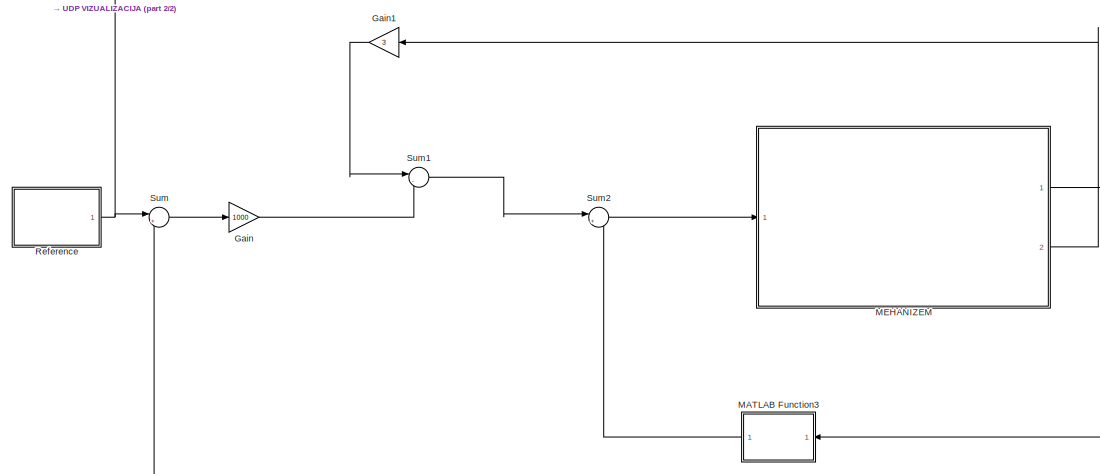
[diagram: root canvas - part 1/2, middle left region]
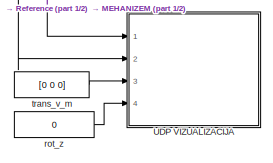
[diagram: root canvas - part 2/2, middle right region]
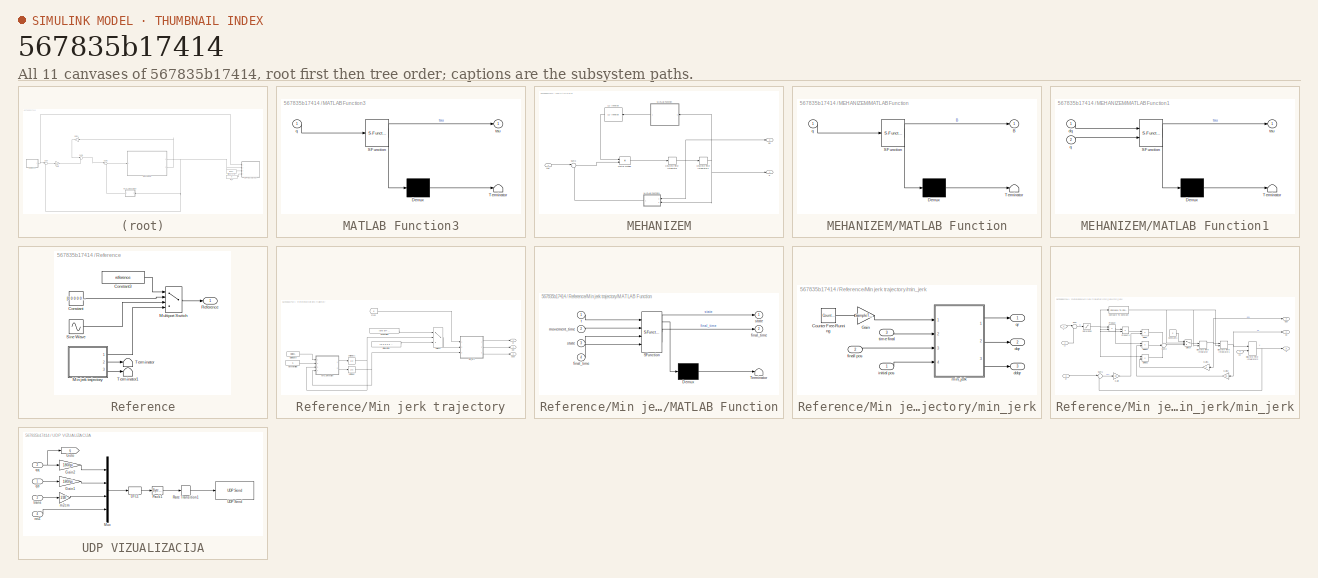
[diagram: thumbnail index - all 11 canvases of the model, root first then tree order]
MODEL slx_567835b17414
KIND model
CONFIG AbsTol = auto
CONFIG EnableMultiTasking = on
CONFIG FixedStep = SampleTime
CONFIG MaxStep = auto
CONFIG MinStep = auto
CONFIG PreLoadFcn = SampleTime = 1/500;\n\nq0 = [0 0 0 0 0 0];\n\nsystem('MotomanVodenje.exe &')
CONFIG RelTol = 1e-3
CONFIG SampleTimeConstraint = Unconstrained
CONFIG Solver = FixedStepDiscrete
CONFIG SolverName = FixedStepDiscrete
CONFIG StartTime = 0.0
CONFIG StopTime = inf
BLOCK [Gain] Gain
  Gain = 1000
  OutDataTypeStr = Inherit: Inherit via internal rule
  ParamDataTypeStr = Inherit: Inherit via internal rule
  SaturateOnIntegerOverflow = off
BLOCK [Gain] Gain1
  Gain = 3
  OutDataTypeStr = Inherit: Inherit via internal rule
  ParamDataTypeStr = Inherit: Inherit via internal rule
  SaturateOnIntegerOverflow = off
BLOCK [SubSystem] MATLAB Function3
  ErrorFcn = Stateflow.Translate.translate
  PermitHierarchicalResolution = ExplicitOnly
  Ports = [1, 1]
  RequestExecContextInheritance = off
  SFBlockType = MATLAB Function
  TreatAsAtomicUnit = on
BLOCK [Demux] MATLAB Function3/ Demux 
  Outputs = 1
  Ports = [1, 1]
BLOCK [S-Function] MATLAB Function3/ SFunction 
  EnableBusSupport = on
  FunctionName = sf_sfun
  PortCounts = [1 2]
  Ports = [1, 2]
  SFcnIsStateOwnerBlock = off
  SFunctionDeploymentMode = off
  Tag = Stateflow S-Function 4
BLOCK [Terminator] MATLAB Function3/ Terminator 
BLOCK [Inport] MATLAB Function3/q
  IconDisplay = Port number
BLOCK [Outport] MATLAB Function3/tau
  IconDisplay = Port number
BLOCK [SubSystem] MEHANIZEM
  Ports = [1, 2]
  RequestExecContextInheritance = off
BLOCK [Reference] MEHANIZEM/ LU Inverse  REF=dspinverses/ LU Inverse
  Ports = [1, 1]
  SourceBlock = dspinverses/ LU Inverse
  SourceProductBaseCode = DS
  SourceProductName = DSP System Toolbox
  SourceType = LU Inverse
BLOCK [DiscreteIntegrator] MEHANIZEM/Discrete-Time Integrator
  ICPrevOutput = DiscIntNeverNeededParam
  ICPrevScaledInput = DiscIntNeverNeededParam
  InitialCondition = [0;0;0;0;0;0]
  InitialConditionSetting = Auto
  Ports = [1, 1]
  SampleTime = 1/500
BLOCK [DiscreteIntegrator] MEHANIZEM/Discrete-Time Integrator1
  ICPrevOutput = DiscIntNeverNeededParam
  ICPrevScaledInput = DiscIntNeverNeededParam
  InitialCondition = [0;0;0;0;0;0]
  InitialConditionSetting = Auto
  Ports = [1, 1]
  SampleTime = 1/500
BLOCK [SubSystem] MEHANIZEM/MATLAB Function
  ErrorFcn = Stateflow.Translate.translate
  PermitHierarchicalResolution = ExplicitOnly
  Ports = [1, 1]
  RequestExecContextInheritance = off
  SFBlockType = MATLAB Function
  TreatAsAtomicUnit = on
BLOCK [Demux] MEHANIZEM/MATLAB Function/ Demux 
  Outputs = 1
  Ports = [1, 1]
BLOCK [S-Function] MEHANIZEM/MATLAB Function/ SFunction 
  EnableBusSupport = on
  FunctionName = sf_sfun
  PortCounts = [1 2]
  Ports = [1, 2]
  SFcnIsStateOwnerBlock = off
  SFunctionDeploymentMode = off
  Tag = Stateflow S-Function 3
BLOCK [Terminator] MEHANIZEM/MATLAB Function/ Terminator 
BLOCK [Outport] MEHANIZEM/MATLAB Function/B
  IconDisplay = Port number
BLOCK [Inport] MEHANIZEM/MATLAB Function/q
  IconDisplay = Port number
BLOCK [SubSystem] MEHANIZEM/MATLAB Function1
  ErrorFcn = Stateflow.Translate.translate
  PermitHierarchicalResolution = ExplicitOnly
  Ports = [2, 1]
  RequestExecContextInheritance = off
  SFBlockType = MATLAB Function
  TreatAsAtomicUnit = on
BLOCK [Demux] MEHANIZEM/MATLAB Function1/ Demux 
  Outputs = 1
  Ports = [1, 1]
BLOCK [S-Function] MEHANIZEM/MATLAB Function1/ SFunction 
  EnableBusSupport = on
  FunctionName = sf_sfun
  PortCounts = [2 2]
  Ports = [2, 2]
  SFcnIsStateOwnerBlock = off
  SFunctionDeploymentMode = off
  Tag = Stateflow S-Function 5
BLOCK [Terminator] MEHANIZEM/MATLAB Function1/ Terminator 
BLOCK [Inport] MEHANIZEM/MATLAB Function1/dq
  IconDisplay = Port number
BLOCK [Inport] MEHANIZEM/MATLAB Function1/q
  IconDisplay = Port number
  Port = 2
BLOCK [Outport] MEHANIZEM/MATLAB Function1/tau
  IconDisplay = Port number
BLOCK [Product] MEHANIZEM/Matrix Multiply
  InputSameDT = off
  Multiplication = Matrix(*)
  OutDataTypeStr = Inherit: Inherit via internal rule
  Ports = [2, 1]
  RndMeth = Floor
  SaturateOnIntegerOverflow = off
BLOCK [Sum] MEHANIZEM/Sum3
  IconShape = round
  InputSameDT = off
  Inputs = |+-
  OutDataTypeStr = Inherit: Inherit via internal rule
  Ports = [2, 1]
  SaturateOnIntegerOverflow = off
BLOCK [Outport] MEHANIZEM/dq
  IconDisplay = Port number
  Port = 2
BLOCK [Outport] MEHANIZEM/q
  IconDisplay = Port number
BLOCK [Inport] MEHANIZEM/tau
  IconDisplay = Port number
BLOCK [SubSystem] Reference
  Ports = [0, 1]
  RequestExecContextInheritance = off
BLOCK [Constant] Reference/Constant
  Value = [0 0 0 0 0 0]
BLOCK [Constant] Reference/Constant3
  Value = reference
BLOCK [SubSystem] Reference/Min jerk trajectory
  Ports = [0, 3]
  RequestExecContextInheritance = off
BLOCK [DigitalClock] Reference/Min jerk trajectory/Digital Clock
  SampleTime = SampleTime
BLOCK [Constant] Reference/Min jerk trajectory/Final position
  Value = [pi/6 pi/4 pi/6 pi/8 pi/2 0]
BLOCK [From] Reference/Min jerk trajectory/From
  GotoTag = q
  TagVisibility = global
BLOCK [Constant] Reference/Min jerk trajectory/Initial position
  Value = [0 0 0 0 0 0]
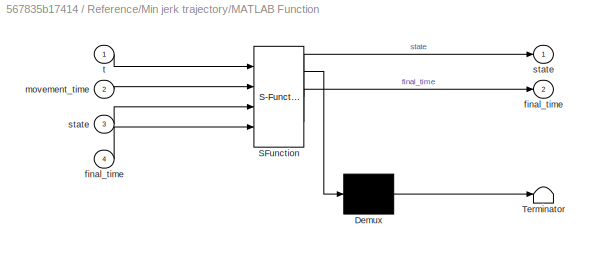
BLOCK [SubSystem] Reference/Min jerk trajectory/MATLAB Function
  ErrorFcn = Stateflow.Translate.translate
  PermitHierarchicalResolution = ExplicitOnly
  Ports = [4, 2]
  RequestExecContextInheritance = off
  SFBlockType = MATLAB Function
  TreatAsAtomicUnit = on
BLOCK [Demux] Reference/Min jerk trajectory/MATLAB Function/ Demux 
  Outputs = 1
  Ports = [1, 1]
BLOCK [S-Function] Reference/Min jerk trajectory/MATLAB Function/ SFunction 
  EnableBusSupport = on
  FunctionName = sf_sfun
  PortCounts = [4 3]
  Ports = [4, 3]
  SFcnIsStateOwnerBlock = off
  SFunctionDeploymentMode = off
  Tag = Stateflow S-Function 17
BLOCK [Terminator] Reference/Min jerk trajectory/MATLAB Function/ Terminator 
BLOCK [Outport] Reference/Min jerk trajectory/MATLAB Function/final_time
  IconDisplay = Port number
  Port = 2
BLOCK [Inport] Reference/Min jerk trajectory/MATLAB Function/final_time 
  IconDisplay = Port number
  Port = 4
BLOCK [Inport] Reference/Min jerk trajectory/MATLAB Function/movement_time
  IconDisplay = Port number
  Port = 2
BLOCK [Outport] Reference/Min jerk trajectory/MATLAB Function/state
  IconDisplay = Port number
BLOCK [Inport] Reference/Min jerk trajectory/MATLAB Function/state 
  IconDisplay = Port number
  Port = 3
BLOCK [Inport] Reference/Min jerk trajectory/MATLAB Function/t
  IconDisplay = Port number
BLOCK [Constant] Reference/Min jerk trajectory/Movement time
  Value = 5
BLOCK [Switch] Reference/Min jerk trajectory/Switch1
  Criteria = u2 > Threshold
  InputSameDT = off
  SaturateOnIntegerOverflow = off
BLOCK [UnitDelay] Reference/Min jerk trajectory/Unit Delay
  HasFrameUpgradeWarning = on
  InitialCondition = 10
  SampleTime = -1
BLOCK [UnitDelay] Reference/Min jerk trajectory/Unit Delay1
  HasFrameUpgradeWarning = on
  InitialCondition = 1
  SampleTime = -1
BLOCK [Outport] Reference/Min jerk trajectory/ddqr
  IconDisplay = Port number
  Port = 3
BLOCK [Outport] Reference/Min jerk trajectory/dqr
  IconDisplay = Port number
  Port = 2
BLOCK [SubSystem] Reference/Min jerk trajectory/min_jerk
  Ports = [3, 3]
  RequestExecContextInheritance = off
BLOCK [Reference] Reference/Min jerk trajectory/min_jerk/Counter Free-Running  REF=simulink/Sources/Counter
Free-Running
  Ports = [0, 1]
  SourceBlock = simulink/Sources/Counter\nFree-Running
  SourceProductBaseCode = SL
  SourceProductName = Simulink
  SourceType = Counter Free-Running
BLOCK [Gain] Reference/Min jerk trajectory/min_jerk/Gain
  Gain = SampleTime
  OutDataTypeStr = Inherit: Inherit via internal rule
  ParamDataTypeStr = Inherit: Inherit via internal rule
  SaturateOnIntegerOverflow = off
BLOCK [Outport] Reference/Min jerk trajectory/min_jerk/ddqr
  IconDisplay = Port number
  Port = 3
BLOCK [Outport] Reference/Min jerk trajectory/min_jerk/dqr
  IconDisplay = Port number
  Port = 2
BLOCK [Inport] Reference/Min jerk trajectory/min_jerk/finall pos
  IconDisplay = Port number
  Port = 2
BLOCK [Inport] Reference/Min jerk trajectory/min_jerk/initial pos
  IconDisplay = Port number
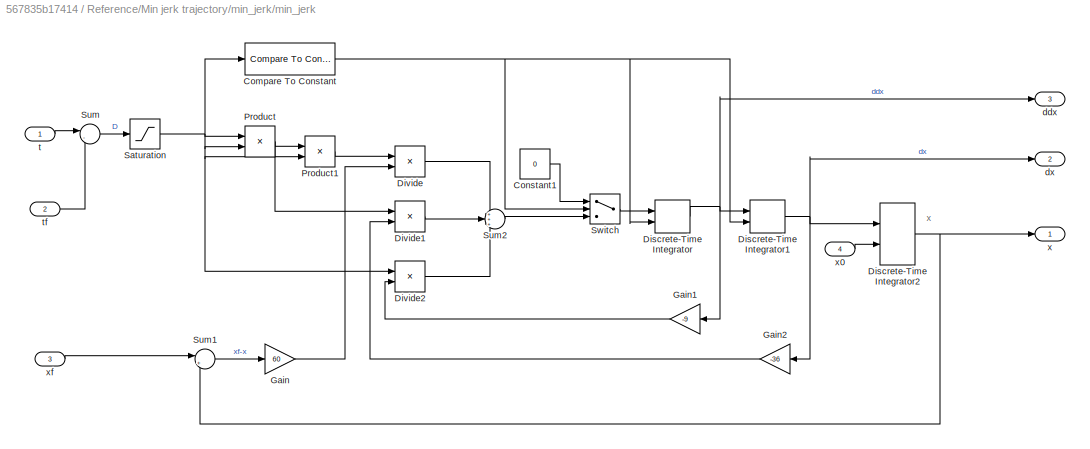
BLOCK [SubSystem] Reference/Min jerk trajectory/min_jerk/min_jerk
  Ports = [4, 3]
  RequestExecContextInheritance = off
BLOCK [Reference] Reference/Min jerk trajectory/min_jerk/min_jerk/Compare To Constant  REF=simulink/Logic and Bit
Operations/Compare
To Constant
  Ports = [1, 1]
  SourceBlock = simulink/Logic and Bit\nOperations/Compare\nTo Constant
  SourceProductBaseCode = SL
  SourceProductName = Simulink
  SourceType = Compare To Constant
BLOCK [Constant] Reference/Min jerk trajectory/min_jerk/min_jerk/Constant1
  Value = 0
BLOCK [DiscreteIntegrator] Reference/Min jerk trajectory/min_jerk/min_jerk/Discrete-Time Integrator
  ExternalReset = rising
  ICPrevOutput = DiscIntNeverNeededParam
  ICPrevScaledInput = DiscIntNeverNeededParam
  Ports = [2, 1]
  SampleTime = SampleTime
BLOCK [DiscreteIntegrator] Reference/Min jerk trajectory/min_jerk/min_jerk/Discrete-Time Integrator1
  ExternalReset = rising
  ICPrevOutput = DiscIntNeverNeededParam
  ICPrevScaledInput = DiscIntNeverNeededParam
  Ports = [2, 1]
  SampleTime = SampleTime
BLOCK [DiscreteIntegrator] Reference/Min jerk trajectory/min_jerk/min_jerk/Discrete-Time Integrator2
  ICPrevOutput = DiscIntNeverNeededParam
  ICPrevScaledInput = DiscIntNeverNeededParam
  InitialCondition = [-0.1 -0.1 -0.1]
  InitialConditionSource = external
  Ports = [2, 1]
  SampleTime = SampleTime
BLOCK [Product] Reference/Min jerk trajectory/min_jerk/min_jerk/Divide
  InputSameDT = off
  Inputs = /*
  OutDataTypeStr = Inherit: Inherit via internal rule
  Ports = [2, 1]
  RndMeth = Floor
  SaturateOnIntegerOverflow = off
BLOCK [Product] Reference/Min jerk trajectory/min_jerk/min_jerk/Divide1
  InputSameDT = off
  Inputs = /*
  OutDataTypeStr = Inherit: Inherit via internal rule
  Ports = [2, 1]
  RndMeth = Floor
  SaturateOnIntegerOverflow = off
BLOCK [Product] Reference/Min jerk trajectory/min_jerk/min_jerk/Divide2
  InputSameDT = off
  Inputs = /*
  OutDataTypeStr = Inherit: Inherit via internal rule
  Ports = [2, 1]
  RndMeth = Floor
  SaturateOnIntegerOverflow = off
BLOCK [Gain] Reference/Min jerk trajectory/min_jerk/min_jerk/Gain
  Gain = 60
  OutDataTypeStr = Inherit: Inherit via internal rule
  ParamDataTypeStr = Inherit: Inherit via internal rule
  SaturateOnIntegerOverflow = off
BLOCK [Gain] Reference/Min jerk trajectory/min_jerk/min_jerk/Gain1
  Gain = -9
  OutDataTypeStr = Inherit: Inherit via internal rule
  ParamDataTypeStr = Inherit: Inherit via internal rule
  SaturateOnIntegerOverflow = off
BLOCK [Gain] Reference/Min jerk trajectory/min_jerk/min_jerk/Gain2
  Gain = -36
  OutDataTypeStr = Inherit: Inherit via internal rule
  ParamDataTypeStr = Inherit: Inherit via internal rule
  SaturateOnIntegerOverflow = off
BLOCK [Product] Reference/Min jerk trajectory/min_jerk/min_jerk/Product
  InputSameDT = off
  OutDataTypeStr = Inherit: Inherit via internal rule
  Ports = [2, 1]
  SaturateOnIntegerOverflow = off
BLOCK [Product] Reference/Min jerk trajectory/min_jerk/min_jerk/Product1
  InputSameDT = off
  OutDataTypeStr = Inherit: Inherit via internal rule
  Ports = [2, 1]
  SaturateOnIntegerOverflow = off
BLOCK [Saturate] Reference/Min jerk trajectory/min_jerk/min_jerk/Saturation
  InputPortMap = u0
  LowerLimit = SampleTime
  Ports = [1, 1]
  UpperLimit = inf
BLOCK [Sum] Reference/Min jerk trajectory/min_jerk/min_jerk/Sum
  IconShape = round
  InputSameDT = off
  Inputs = |-+
  OutDataTypeStr = Inherit: Inherit via internal rule
  Ports = [2, 1]
  SaturateOnIntegerOverflow = off
BLOCK [Sum] Reference/Min jerk trajectory/min_jerk/min_jerk/Sum1
  IconShape = round
  InputSameDT = off
  Inputs = |+-
  OutDataTypeStr = Inherit: Inherit via internal rule
  Ports = [2, 1]
  SaturateOnIntegerOverflow = off
BLOCK [Sum] Reference/Min jerk trajectory/min_jerk/min_jerk/Sum2
  IconShape = round
  InputSameDT = off
  Inputs = +++
  OutDataTypeStr = Inherit: Inherit via internal rule
  Ports = [3, 1]
  SaturateOnIntegerOverflow = off
BLOCK [Switch] Reference/Min jerk trajectory/min_jerk/min_jerk/Switch
  Criteria = u2 > Threshold
  InputSameDT = off
  SaturateOnIntegerOverflow = off
BLOCK [Outport] Reference/Min jerk trajectory/min_jerk/min_jerk/ddx
  IconDisplay = Port number
  Port = 3
BLOCK [Outport] Reference/Min jerk trajectory/min_jerk/min_jerk/dx
  IconDisplay = Port number
  Port = 2
BLOCK [Inport] Reference/Min jerk trajectory/min_jerk/min_jerk/t
  IconDisplay = Port number
BLOCK [Inport] Reference/Min jerk trajectory/min_jerk/min_jerk/tf
  IconDisplay = Port number
  Port = 2
BLOCK [Outport] Reference/Min jerk trajectory/min_jerk/min_jerk/x
  IconDisplay = Port number
BLOCK [Inport] Reference/Min jerk trajectory/min_jerk/min_jerk/x0
  IconDisplay = Port number
  Port = 4
BLOCK [Inport] Reference/Min jerk trajectory/min_jerk/min_jerk/xf
  IconDisplay = Port number
  Port = 3
BLOCK [Outport] Reference/Min jerk trajectory/min_jerk/qr
  IconDisplay = Port number
BLOCK [Inport] Reference/Min jerk trajectory/min_jerk/time final
  IconDisplay = Port number
  Port = 3
BLOCK [Outport] Reference/Min jerk trajectory/qr
  IconDisplay = Port number
BLOCK [MultiPortSwitch] Reference/Multiport Switch
  InputSameDT = off
  Ports = [4, 1]
  SaturateOnIntegerOverflow = off
BLOCK [Outport] Reference/Reference
  IconDisplay = Port number
BLOCK [Sin] Reference/Sine Wave
  Amplitude = [0 pi/8 pi/6 0 0 0]
  Bias = zeros(1,6)
  Frequency = 2*pi*0.5
  Phase = zeros(1,6)
  Ports = [0, 1]
  SampleTime = 0
BLOCK [Terminator] Reference/Terminator
BLOCK [Terminator] Reference/Terminator1
BLOCK [Sum] Sum
  IconShape = round
  InputSameDT = off
  Inputs = |+-
  OutDataTypeStr = Inherit: Inherit via internal rule
  Ports = [2, 1]
  SaturateOnIntegerOverflow = off
BLOCK [Sum] Sum1
  IconShape = round
  InputSameDT = off
  Inputs = |-+
  OutDataTypeStr = Inherit: Inherit via internal rule
  Ports = [2, 1]
  SaturateOnIntegerOverflow = off
BLOCK [Sum] Sum2
  IconShape = round
  InputSameDT = off
  Inputs = |++
  OutDataTypeStr = Inherit: Inherit via internal rule
  Ports = [2, 1]
  SaturateOnIntegerOverflow = off
BLOCK [SubSystem] UDP VIZUALIZACIJA
  Ports = [4]
  RequestExecContextInheritance = off
BLOCK [DataTypeConversion] UDP VIZUALIZACIJA/DTC1
  OutDataTypeStr = single
  RndMeth = Floor
  SaturateOnIntegerOverflow = off
BLOCK [Gain] UDP VIZUALIZACIJA/Gain1
  Gain = 180/pi
  OutDataTypeStr = Inherit: Inherit via internal rule
  ParamDataTypeStr = Inherit: Inherit via internal rule
  SaturateOnIntegerOverflow = off
BLOCK [Gain] UDP VIZUALIZACIJA/Gain2
  Gain = 180/pi
  OutDataTypeStr = Inherit: Inherit via internal rule
  ParamDataTypeStr = Inherit: Inherit via internal rule
  SaturateOnIntegerOverflow = off
BLOCK [Goto] UDP VIZUALIZACIJA/Goto
  GotoTag = q
  TagVisibility = global
BLOCK [Mux] UDP VIZUALIZACIJA/Mux
  DisplayOption = bar
  Ports = [4, 1]
BLOCK [Reference] UDP VIZUALIZACIJA/Pack1  REF=xpcutilitieslib/Byte Packing 
  Ports = [1, 1]
  SourceBlock = xpcutilitieslib/Byte Packing
  SourceProductBaseCode = XP
  SourceProductName = Simulink Real-Time
  SourceType = xpcbytepacking
BLOCK [RateTransition] UDP VIZUALIZACIJA/Rate Transition1
BLOCK [Reference] UDP VIZUALIZACIJA/UDP Send  REF=dspnetwork/UDP Send
  Ports = [1]
  SourceBlock = dspnetwork/UDP Send
  SourceProductBaseCode = SL
  SourceProductName = Simulink
  SourceType = UDP Send
BLOCK [Gain] UDP VIZUALIZACIJA/m2cm
  Gain = 1/100
  OutDataTypeStr = Inherit: Inherit via internal rule
  ParamDataTypeStr = Inherit: Inherit via internal rule
  SaturateOnIntegerOverflow = off
BLOCK [Inport] UDP VIZUALIZACIJA/qd
  IconDisplay = Port number
BLOCK [Inport] UDP VIZUALIZACIJA/qq
  IconDisplay = Port number
  Port = 2
BLOCK [Inport] UDP VIZUALIZACIJA/rotZ
  IconDisplay = Port number
  Port = 4
BLOCK [Inport] UDP VIZUALIZACIJA/trans
  IconDisplay = Port number
  Port = 3
BLOCK [Constant] rot_z
  Value = 0
BLOCK [Constant] trans_v_m
  Value = [0 0 0]
ANNOTATION Reference/Min jerk trajectory/min_jerk/min_jerk: x
LINE Gain1:1 -> Sum1:1
LINE Gain:1 -> Sum1:2
LINE MATLAB Function3:1 -> Sum2:2
LINE MEHANIZEM/ LU Inverse:1 -> MEHANIZEM/Matrix Multiply:1
NET MEHANIZEM/Discrete-Time Integrator1:1 -> MEHANIZEM/MATLAB Function1:2, MEHANIZEM/MATLAB Function:1, MEHANIZEM/q:1
NET MEHANIZEM/Discrete-Time Integrator:1 -> MEHANIZEM/Discrete-Time Integrator1:1, MEHANIZEM/MATLAB Function1:1, MEHANIZEM/dq:1
LINE MEHANIZEM/MATLAB Function1:1 -> MEHANIZEM/Sum3:2
LINE MEHANIZEM/MATLAB Function:1 -> MEHANIZEM/ LU Inverse:1
LINE MEHANIZEM/Matrix Multiply:1 -> MEHANIZEM/Discrete-Time Integrator:1
LINE MEHANIZEM/Sum3:1 -> MEHANIZEM/Matrix Multiply:2
LINE MEHANIZEM/tau:1 -> MEHANIZEM/Sum3:1
NET MEHANIZEM:1 -> MATLAB Function3:1, Sum:2, UDP VIZUALIZACIJA:2
LINE MEHANIZEM:2 -> Gain1:1
LINE Reference/Constant3:1 -> Reference/Multiport Switch:1
LINE Reference/Constant:1 -> Reference/Multiport Switch:2
LINE Reference/Min jerk trajectory/Digital Clock:1 -> Reference/Min jerk trajectory/MATLAB Function:1
LINE Reference/Min jerk trajectory/Final position:1 -> Reference/Min jerk trajectory/Switch1:1
LINE Reference/Min jerk trajectory/From:1 -> Reference/Min jerk trajectory/min_jerk:1
LINE Reference/Min jerk trajectory/Initial position:1 -> Reference/Min jerk trajectory/Switch1:3
LINE Reference/Min jerk trajectory/MATLAB Function:1 -> Reference/Min jerk trajectory/Unit Delay1:1
LINE Reference/Min jerk trajectory/MATLAB Function:2 -> Reference/Min jerk trajectory/Unit Delay:1
LINE Reference/Min jerk trajectory/Movement time:1 -> Reference/Min jerk trajectory/MATLAB Function:2
LINE Reference/Min jerk trajectory/Switch1:1 -> Reference/Min jerk trajectory/min_jerk:2
NET Reference/Min jerk trajectory/Unit Delay1:1 -> Reference/Min jerk trajectory/MATLAB Function:3, Reference/Min jerk trajectory/Switch1:2
NET Reference/Min jerk trajectory/Unit Delay:1 -> Reference/Min jerk trajectory/MATLAB Function:4, Reference/Min jerk trajectory/min_jerk:3
LINE Reference/Min jerk trajectory/min_jerk/Counter Free-Running:1 -> Reference/Min jerk trajectory/min_jerk/Gain:1
LINE Reference/Min jerk trajectory/min_jerk/Gain:1 -> Reference/Min jerk trajectory/min_jerk/min_jerk:1
LINE Reference/Min jerk trajectory/min_jerk/finall pos:1 -> Reference/Min jerk trajectory/min_jerk/min_jerk:3
LINE Reference/Min jerk trajectory/min_jerk/initial pos:1 -> Reference/Min jerk trajectory/min_jerk/min_jerk:4
NET Reference/Min jerk trajectory/min_jerk/min_jerk/Compare To Constant:1 -> Reference/Min jerk trajectory/min_jerk/min_jerk/Discrete-Time Integrator1:2, Reference/Min jerk trajectory/min_jerk/min_jerk/Discrete-Time Integrator:2, Reference/Min jerk trajectory/min_jerk/min_jerk/Switch:2
LINE Reference/Min jerk trajectory/min_jerk/min_jerk/Constant1:1 -> Reference/Min jerk trajectory/min_jerk/min_jerk/Switch:1
NET Reference/Min jerk trajectory/min_jerk/min_jerk/Discrete-Time Integrator1:1 -> Reference/Min jerk trajectory/min_jerk/min_jerk/Discrete-Time Integrator2:1, Reference/Min jerk trajectory/min_jerk/min_jerk/Gain2:1, Reference/Min jerk trajectory/min_jerk/min_jerk/dx:1
NET Reference/Min jerk trajectory/min_jerk/min_jerk/Discrete-Time Integrator2:1 -> Reference/Min jerk trajectory/min_jerk/min_jerk/Sum1:2, Reference/Min jerk trajectory/min_jerk/min_jerk/x:1
NET Reference/Min jerk trajectory/min_jerk/min_jerk/Discrete-Time Integrator:1 -> Reference/Min jerk trajectory/min_jerk/min_jerk/Discrete-Time Integrator1:1, Reference/Min jerk trajectory/min_jerk/min_jerk/Gain1:1, Reference/Min jerk trajectory/min_jerk/min_jerk/ddx:1
LINE Reference/Min jerk trajectory/min_jerk/min_jerk/Divide1:1 -> Reference/Min jerk trajectory/min_jerk/min_jerk/Sum2:2
LINE Reference/Min jerk trajectory/min_jerk/min_jerk/Divide2:1 -> Reference/Min jerk trajectory/min_jerk/min_jerk/Sum2:3
LINE Reference/Min jerk trajectory/min_jerk/min_jerk/Divide:1 -> Reference/Min jerk trajectory/min_jerk/min_jerk/Sum2:1
LINE Reference/Min jerk trajectory/min_jerk/min_jerk/Gain1:1 -> Reference/Min jerk trajectory/min_jerk/min_jerk/Divide2:2
LINE Reference/Min jerk trajectory/min_jerk/min_jerk/Gain2:1 -> Reference/Min jerk trajectory/min_jerk/min_jerk/Divide1:2
LINE Reference/Min jerk trajectory/min_jerk/min_jerk/Gain:1 -> Reference/Min jerk trajectory/min_jerk/min_jerk/Divide:2
LINE Reference/Min jerk trajectory/min_jerk/min_jerk/Product1:1 -> Reference/Min jerk trajectory/min_jerk/min_jerk/Divide:1
NET Reference/Min jerk trajectory/min_jerk/min_jerk/Product:1 -> Reference/Min jerk trajectory/min_jerk/min_jerk/Divide1:1, Reference/Min jerk trajectory/min_jerk/min_jerk/Product1:1
NET Reference/Min jerk trajectory/min_jerk/min_jerk/Saturation:1 -> Reference/Min jerk trajectory/min_jerk/min_jerk/Compare To Constant:1, Reference/Min jerk trajectory/min_jerk/min_jerk/Divide2:1, Reference/Min jerk trajectory/min_jerk/min_jerk/Product1:2, Reference/Min jerk trajectory/min_jerk/min_jerk/Product:1, Reference/Min jerk trajectory/min_jerk/min_jerk/Product:2
LINE Reference/Min jerk trajectory/min_jerk/min_jerk/Sum1:1 -> Reference/Min jerk trajectory/min_jerk/min_jerk/Gain:1
LINE Reference/Min jerk trajectory/min_jerk/min_jerk/Sum2:1 -> Reference/Min jerk trajectory/min_jerk/min_jerk/Switch:3
LINE Reference/Min jerk trajectory/min_jerk/min_jerk/Sum:1 -> Reference/Min jerk trajectory/min_jerk/min_jerk/Saturation:1
LINE Reference/Min jerk trajectory/min_jerk/min_jerk/Switch:1 -> Reference/Min jerk trajectory/min_jerk/min_jerk/Discrete-Time Integrator:1
LINE Reference/Min jerk trajectory/min_jerk/min_jerk/t:1 -> Reference/Min jerk trajectory/min_jerk/min_jerk/Sum:1
LINE Reference/Min jerk trajectory/min_jerk/min_jerk/tf:1 -> Reference/Min jerk trajectory/min_jerk/min_jerk/Sum:2
LINE Reference/Min jerk trajectory/min_jerk/min_jerk/x0:1 -> Reference/Min jerk trajectory/min_jerk/min_jerk/Discrete-Time Integrator2:2
LINE Reference/Min jerk trajectory/min_jerk/min_jerk/xf:1 -> Reference/Min jerk trajectory/min_jerk/min_jerk/Sum1:1
LINE Reference/Min jerk trajectory/min_jerk/min_jerk:1 -> Reference/Min jerk trajectory/min_jerk/qr:1
LINE Reference/Min jerk trajectory/min_jerk/min_jerk:2 -> Reference/Min jerk trajectory/min_jerk/dqr:1
LINE Reference/Min jerk trajectory/min_jerk/min_jerk:3 -> Reference/Min jerk trajectory/min_jerk/ddqr:1
LINE Reference/Min jerk trajectory/min_jerk/time final:1 -> Reference/Min jerk trajectory/min_jerk/min_jerk:2
LINE Reference/Min jerk trajectory/min_jerk:1 -> Reference/Min jerk trajectory/qr:1
LINE Reference/Min jerk trajectory/min_jerk:2 -> Reference/Min jerk trajectory/dqr:1
LINE Reference/Min jerk trajectory/min_jerk:3 -> Reference/Min jerk trajectory/ddqr:1
LINE Reference/Min jerk trajectory:1 -> Reference/Multiport Switch:4
LINE Reference/Min jerk trajectory:2 -> Reference/Terminator:1
LINE Reference/Min jerk trajectory:3 -> Reference/Terminator1:1
LINE Reference/Multiport Switch:1 -> Reference/Reference:1
LINE Reference/Sine Wave:1 -> Reference/Multiport Switch:3
NET Reference:1 -> Sum:1, UDP VIZUALIZACIJA:1
LINE Sum1:1 -> Sum2:1
LINE Sum2:1 -> MEHANIZEM:1
LINE Sum:1 -> Gain:1
LINE UDP VIZUALIZACIJA/DTC1:1 -> UDP VIZUALIZACIJA/Pack1:1
LINE UDP VIZUALIZACIJA/Gain1:1 -> UDP VIZUALIZACIJA/Mux:2
LINE UDP VIZUALIZACIJA/Gain2:1 -> UDP VIZUALIZACIJA/Mux:1
LINE UDP VIZUALIZACIJA/Mux:1 -> UDP VIZUALIZACIJA/DTC1:1
LINE UDP VIZUALIZACIJA/Pack1:1 -> UDP VIZUALIZACIJA/Rate Transition1:1
LINE UDP VIZUALIZACIJA/Rate Transition1:1 -> UDP VIZUALIZACIJA/UDP Send:1
LINE UDP VIZUALIZACIJA/m2cm:1 -> UDP VIZUALIZACIJA/Mux:3
LINE UDP VIZUALIZACIJA/qd:1 -> UDP VIZUALIZACIJA/Gain1:1
NET UDP VIZUALIZACIJA/qq:1 -> UDP VIZUALIZACIJA/Gain2:1, UDP VIZUALIZACIJA/Goto:1
LINE UDP VIZUALIZACIJA/rotZ:1 -> UDP VIZUALIZACIJA/Mux:4
LINE UDP VIZUALIZACIJA/trans:1 -> UDP VIZUALIZACIJA/m2cm:1
LINE rot_z:1 -> UDP VIZUALIZACIJA:4
LINE trans_v_m:1 -> UDP VIZUALIZACIJA:3
note: NET lines group one-source signal fan-out (src -> all destinations, sorted); 1:1 wires keep LINE
CHART MEHANIZEM/MATLAB Function states=1 transitions=1
  STATE_LABEL 'eML_blk_kernel()'
  STATE_LABEL 'SCRIPT:\nfunction B = inertia6(q)\n\n    B = inertia6(q);\nend\n'
CHART MATLAB Function3 states=1 transitions=1
  STATE_LABEL 'eML_blk_kernel()'
  STATE_LABEL "SCRIPT:\nfunction tau = torque(q)\n\n% Upostevamo pogoj za pospesek, ki deluje na bazo robota.\n    ddp0 = [0,0,9.81]';                                            %%% STUDENT %%%\n\n% Upostevamo pogoj za kotne pospeske v sklepih.\n    ddq = zeros(6,1); \n    dq = zeros(6,1); \n\ntau = torque(ddq, dq, q, ddp0);\nend"
CHART MEHANIZEM/MATLAB Function1 states=1 transitions=1
  STATE_LABEL 'eML_blk_kernel()'
  STATE_LABEL 'SCRIPT:\nfunction tau = tau6_q_dq(dq, q)\n\ntau = tau6_q_dq(dq, q);\n'
CHART Reference/Min jerk trajectory/MATLAB Function states=1 transitions=1
  STATE_LABEL 'eML_blk_kernel()'
  STATE_LABEL 'SCRIPT:\nfunction [state, final_time] = ch_dir(t, movement_time, state, final_time)\n\nif (mod(t, movement_time)==0)\n    if (state==1)\n        state = 0;\n    else\n        state = 1;\n    end\n    final_time = t + movement_time;\nend\n'
